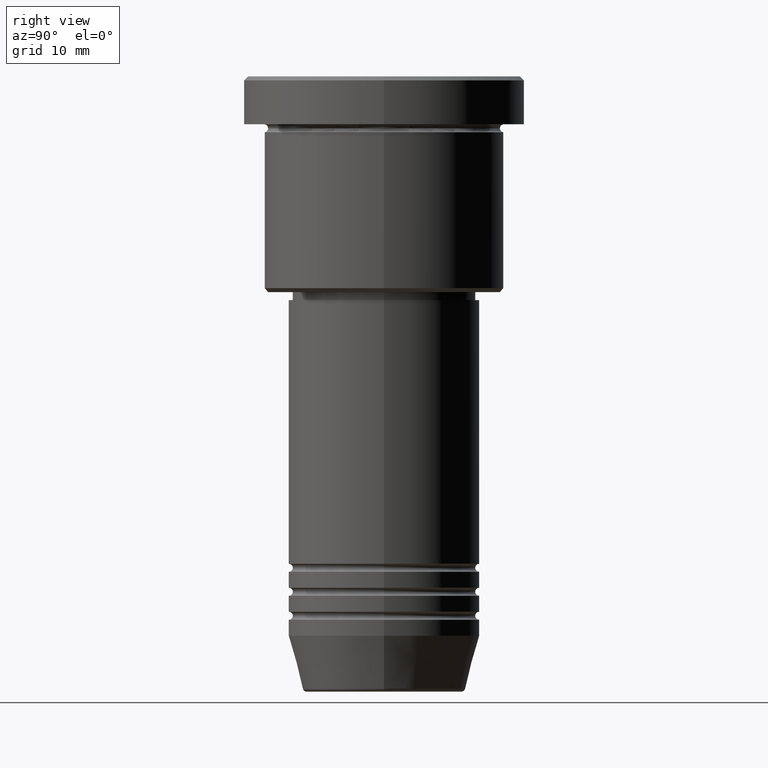
[diagram: clean part render]
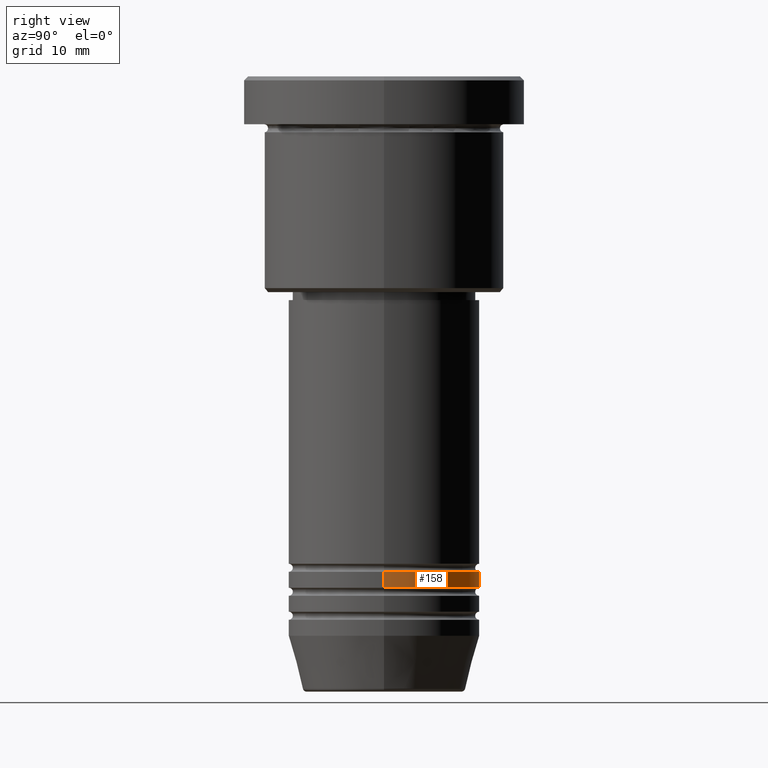
[diagram: same view with one face highlighted and labeled with its STEP entity id]
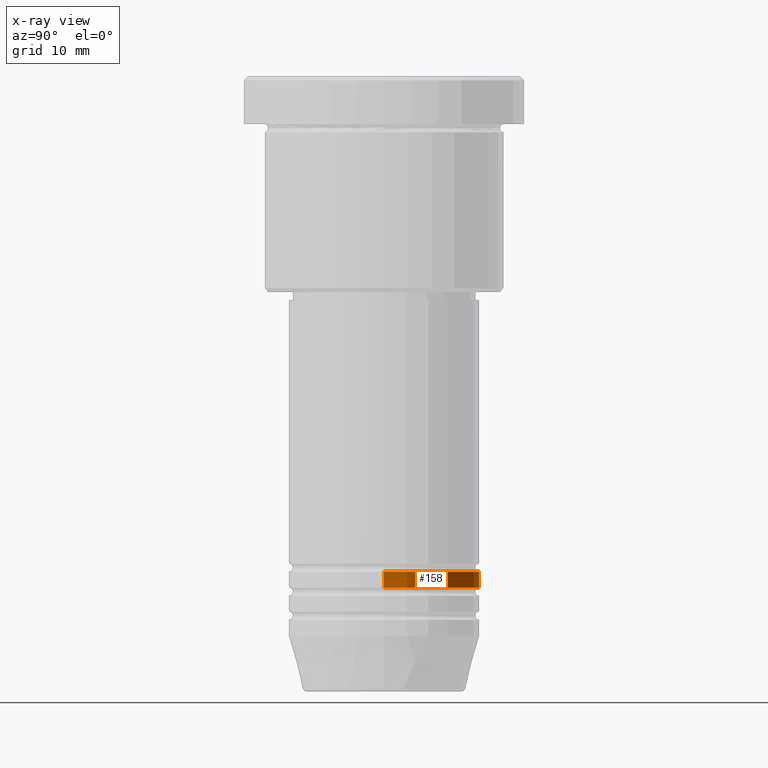
[diagram: x-ray of the same camera — body ghosted, the highlighted face saturated]
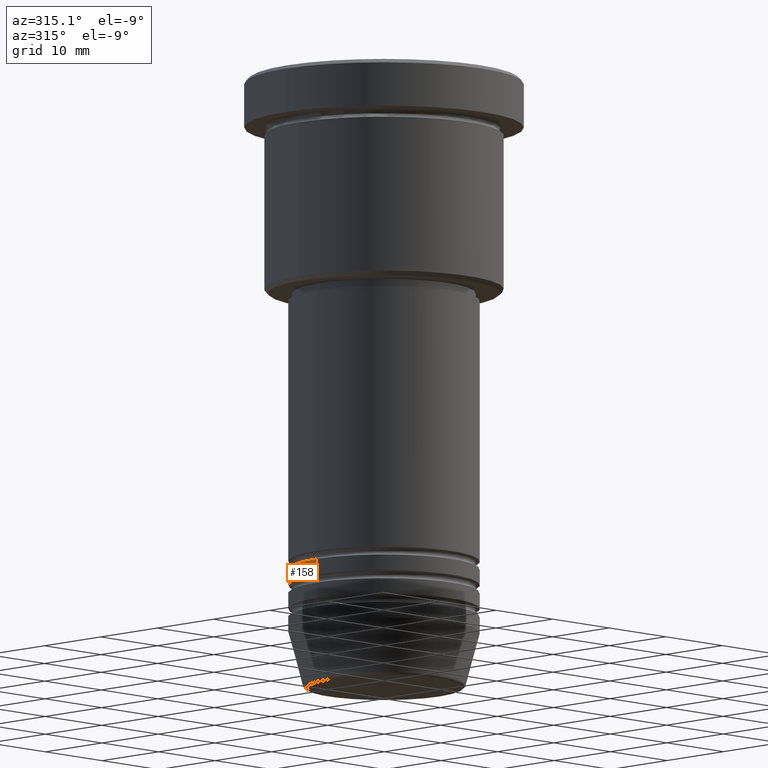
[diagram: same view with one face highlighted and labeled with its STEP entity id]
A machine part, right view. The second image highlights one B-rep face of the part: STEP entity #158.
The next image is the same camera in x-ray: the body ghosted, the highlighted face saturated — about 0% of this face is hidden behind the body in this view.
A second angle (auxiliary view) of the same face is appended — the face is thin or edge-on in the first view.
In plain terms, the highlighted cylindrical surface (partial cylindrical patch) has radius 12 mm, axis along (-0, -0, 1).
Its self-contained STEP definition (entity closure, byte-faithful):
#21 = DIRECTION ( 'NONE',  ( -0.000000000000000000, -0.000000000000000000, 1.000000000000000000 ) ) ;
#34 = DIRECTION ( 'NONE',  ( -0.000000000000000000, -0.000000000000000000, 1.000000000000000000 ) ) ;
#49 = CARTESIAN_POINT ( 'NONE',  ( 0.000000000000000000, 0.000000000000000000, -63.99999999999998579 ) ) ;
#95 = CARTESIAN_POINT ( 'NONE',  ( 12.00000000000000000, 0.000000000000000000, -61.99999999999998579 ) ) ;
#142 = DIRECTION ( 'NONE',  ( -0.000000000000000000, -0.000000000000000000, 1.000000000000000000 ) ) ;
#158 = ADVANCED_FACE ( 'NONE', ( #1015 ), #212, .T. ) ;
#171 = ORIENTED_EDGE ( 'NONE', *, *, #599, .T. ) ;
#182 = VERTEX_POINT ( 'NONE', #866 ) ;
#212 = CYLINDRICAL_SURFACE ( 'NONE', #887, 12.00000000000000000 ) ;
#266 = VERTEX_POINT ( 'NONE', #862 ) ;
#346 = VECTOR ( 'NONE', #21, 1000.000000000000000 ) ;
#368 = ORIENTED_EDGE ( 'NONE', *, *, #666, .T. ) ;
#395 = CARTESIAN_POINT ( 'NONE',  ( 0.000000000000000000, 0.000000000000000000, 0.000000000000000000 ) ) ;
#427 = CARTESIAN_POINT ( 'NONE',  ( 12.00000000000000000, 0.000000000000000000, -63.99999999999998579 ) ) ;
#510 = DIRECTION ( 'NONE',  ( -0.000000000000000000, -0.000000000000000000, 1.000000000000000000 ) ) ;
#536 = AXIS2_PLACEMENT_3D ( 'NONE', #49, #142, #876 ) ;
#541 = ORIENTED_EDGE ( 'NONE', *, *, #1084, .F. ) ;
#599 = EDGE_CURVE ( 'NONE', #182, #266, #844, .T. ) ;
#621 = VERTEX_POINT ( 'NONE', #427 ) ;
#666 = EDGE_CURVE ( 'NONE', #621, #182, #1040, .T. ) ;
#672 = DIRECTION ( 'NONE',  ( 1.000000000000000000, 0.000000000000000000, 0.000000000000000000 ) ) ;
#703 = AXIS2_PLACEMENT_3D ( 'NONE', #788, #510, #883 ) ;
#712 = EDGE_CURVE ( 'NONE', #803, #266, #816, .T. ) ;
#788 = CARTESIAN_POINT ( 'NONE',  ( 0.000000000000000000, 0.000000000000000000, -61.99999999999998579 ) ) ;
#803 = VERTEX_POINT ( 'NONE', #95 ) ;
#816 = CIRCLE ( 'NONE', #703, 12.00000000000000000 ) ;
#840 = EDGE_LOOP ( 'NONE', ( #368, #171, #971, #541 ) ) ;
#844 = LINE ( 'NONE', #1026, #346 ) ;
#862 = CARTESIAN_POINT ( 'NONE',  ( -12.00000000000000000, 1.469576158976823947E-15, -61.99999999999998579 ) ) ;
#866 = CARTESIAN_POINT ( 'NONE',  ( -12.00000000000000000, 1.469576158976823947E-15, -63.99999999999998579 ) ) ;
#867 = LINE ( 'NONE', #874, #905 ) ;
#874 = CARTESIAN_POINT ( 'NONE',  ( 12.00000000000000000, 0.000000000000000000, 0.000000000000000000 ) ) ;
#876 = DIRECTION ( 'NONE',  ( 1.000000000000000000, 0.000000000000000000, 0.000000000000000000 ) ) ;
#883 = DIRECTION ( 'NONE',  ( 1.000000000000000000, 0.000000000000000000, 0.000000000000000000 ) ) ;
#887 = AXIS2_PLACEMENT_3D ( 'NONE', #395, #34, #672 ) ;
#905 = VECTOR ( 'NONE', #1149, 1000.000000000000000 ) ;
#971 = ORIENTED_EDGE ( 'NONE', *, *, #712, .F. ) ;
#1015 = FACE_OUTER_BOUND ( 'NONE', #840, .T. ) ;
#1026 = CARTESIAN_POINT ( 'NONE',  ( -12.00000000000000000, 1.469576158976823947E-15, 0.000000000000000000 ) ) ;
#1040 = CIRCLE ( 'NONE', #536, 12.00000000000000000 ) ;
#1084 = EDGE_CURVE ( 'NONE', #621, #803, #867, .T. ) ;
#1149 = DIRECTION ( 'NONE',  ( -0.000000000000000000, -0.000000000000000000, 1.000000000000000000 ) ) ;